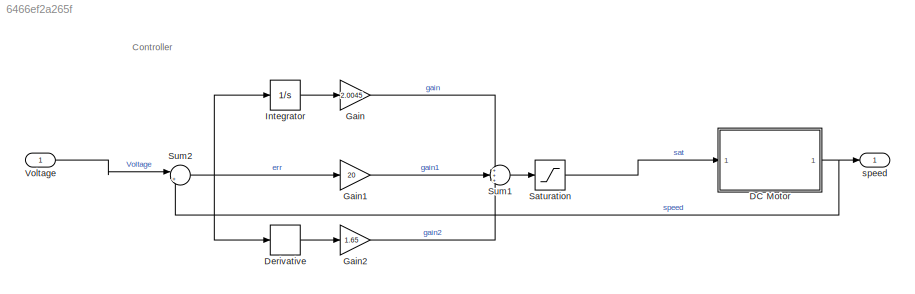
MODEL slx_6466ef2a265f
KIND model
CONFIG AbsTol = auto
CONFIG EnableMultiTasking = off
CONFIG FixedStep = 0.01
CONFIG MaxStep = auto
CONFIG MinStep = auto
CONFIG RelTol = 1e-3
CONFIG SampleTimeConstraint = Unconstrained
CONFIG Solver = FixedStepAuto
CONFIG SolverName = FixedStepAuto
CONFIG StartTime = 0.0
CONFIG StopTime = 10
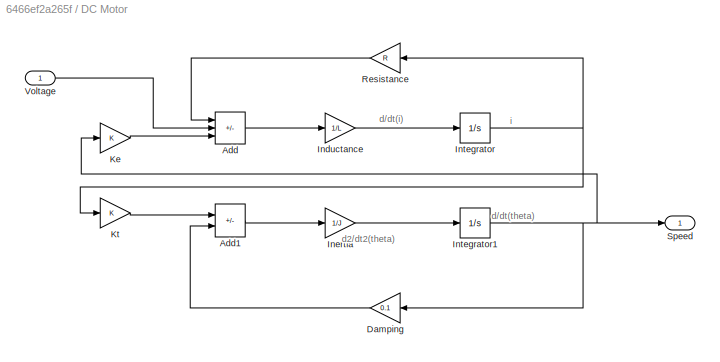
BLOCK [SubSystem] DC Motor
  Ports = [1, 1]
  RequestExecContextInheritance = off
BLOCK [Sum] DC Motor/Add
  IconShape = rectangular
  Inputs = -+-
  Ports = [3, 1]
BLOCK [Sum] DC Motor/Add1
  IconShape = rectangular
  Inputs = +-
  Ports = [2, 1]
BLOCK [Gain] DC Motor/Damping
  Gain = 0.1
BLOCK [Gain] DC Motor/Inductance
  Gain = 1/L
BLOCK [Gain] DC Motor/Inertia
  Gain = 1/J
BLOCK [Integrator] DC Motor/Integrator
  Ports = [1, 1]
BLOCK [Integrator] DC Motor/Integrator1
  Ports = [1, 1]
BLOCK [Gain] DC Motor/Ke
  Gain = K
BLOCK [Gain] DC Motor/Kt
  Gain = K
BLOCK [Gain] DC Motor/Resistance
  Gain = R
BLOCK [Outport] DC Motor/Speed
BLOCK [Inport] DC Motor/Voltage
BLOCK [Derivative] Derivative
BLOCK [Gain] Gain
  Gain = 2.0045
BLOCK [Gain] Gain1
  Gain = 20
BLOCK [Gain] Gain2
  Gain = 1.65
BLOCK [Integrator] Integrator
  Ports = [1, 1]
BLOCK [Saturate] Saturation
  LowerLimit = -15
  UpperLimit = 15
BLOCK [Sum] Sum1
  Inputs = +++
  Ports = [3, 1]
BLOCK [Sum] Sum2
  Inputs = |+-
  Ports = [2, 1]
BLOCK [Inport] Voltage
BLOCK [Outport] speed
ANNOTATION (root): Controller
ANNOTATION DC Motor: d/dt(i)
ANNOTATION DC Motor: d/dt(theta)
ANNOTATION DC Motor: d2/dt2(theta)
ANNOTATION DC Motor: i
LINE DC Motor/Add1:1 -> DC Motor/Inertia:1
LINE DC Motor/Add:1 -> DC Motor/Inductance:1
LINE DC Motor/Damping:1 -> DC Motor/Add1:2
LINE DC Motor/Inductance:1 -> DC Motor/Integrator:1
LINE DC Motor/Inertia:1 -> DC Motor/Integrator1:1
NET DC Motor/Integrator1:1 -> DC Motor/Damping:1, DC Motor/Ke:1, DC Motor/Speed:1
NET DC Motor/Integrator:1 -> DC Motor/Kt:1, DC Motor/Resistance:1
LINE DC Motor/Ke:1 -> DC Motor/Add:3
LINE DC Motor/Kt:1 -> DC Motor/Add1:1
LINE DC Motor/Resistance:1 -> DC Motor/Add:1
LINE DC Motor/Voltage:1 -> DC Motor/Add:2
NET DC Motor:1 -> Sum2:2, speed:1
LINE Derivative:1 -> Gain2:1
LINE Gain1:1 -> Sum1:2
LINE Gain2:1 -> Sum1:3
LINE Gain:1 -> Sum1:1
LINE Integrator:1 -> Gain:1
LINE Saturation:1 -> DC Motor:1
LINE Sum1:1 -> Saturation:1
NET Sum2:1 -> Derivative:1, Gain1:1, Integrator:1
LINE Voltage:1 -> Sum2:1
note: NET lines group one-source signal fan-out (src -> all destinations, sorted); 1:1 wires keep LINE
